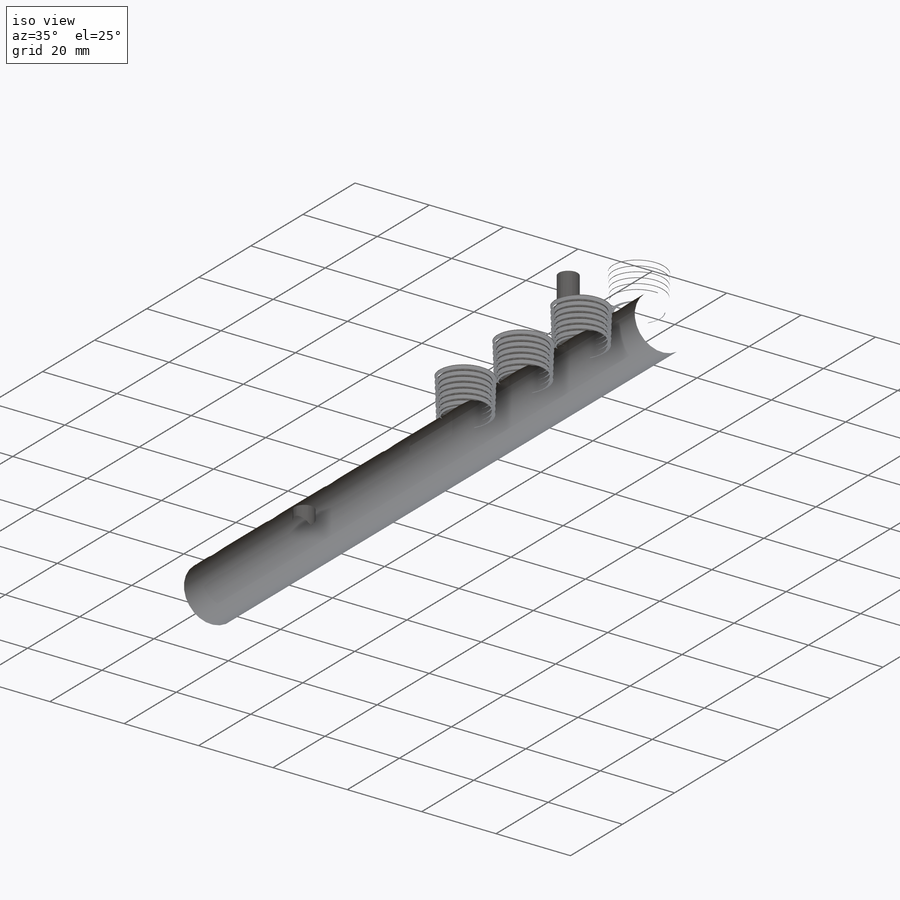
[diagram: iso view]
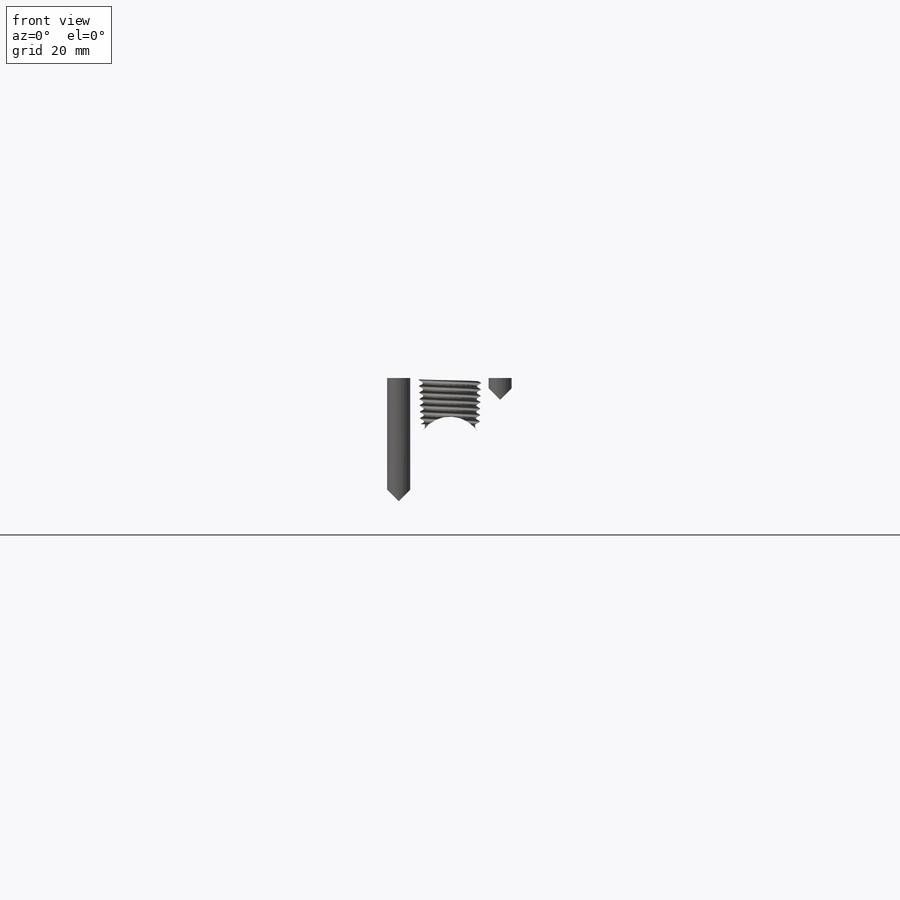
[diagram: front view]
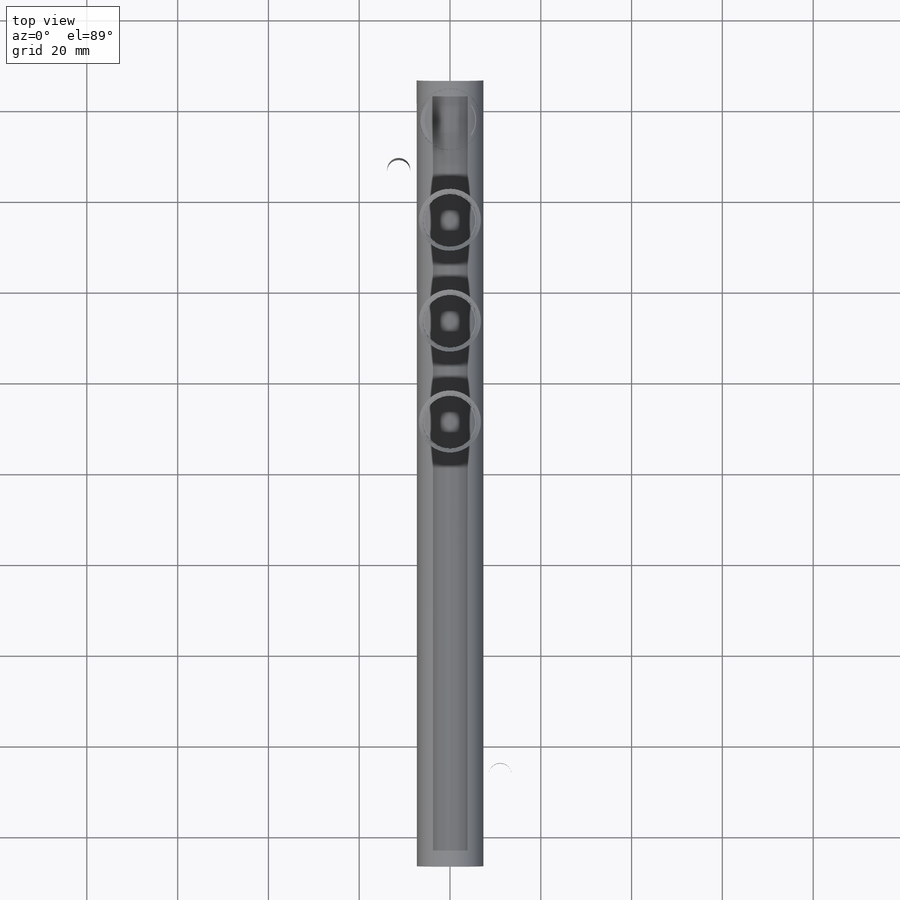
[diagram: top view]
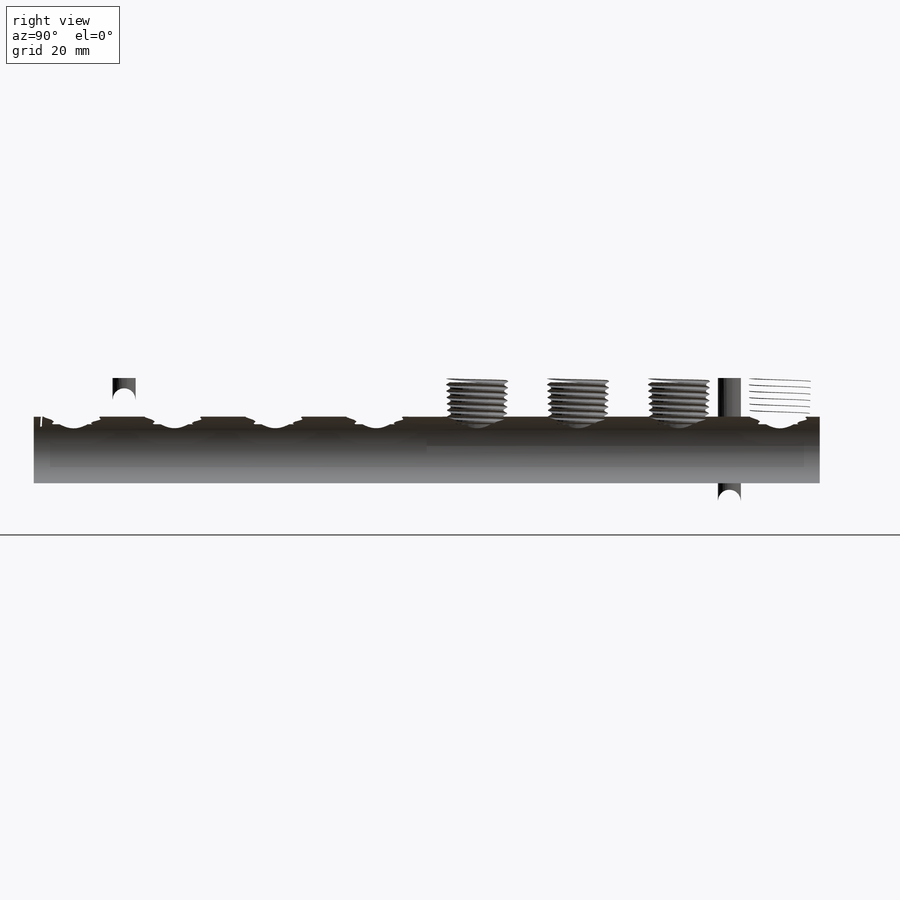
[diagram: right view]
SOLIDWORKS PART (.sldprt)
format: sldprt  version: not decoded by parser v0  size: 3,798,016 bytes
history: native  units: mm
features: sketch x17, cut_extrude x6, cut_revolve x2, helix x2, sweep x2, pattern_linear x2, pattern_circular x2, material x1, extrude x1 (+15 scaffold rows collapsed)
feature tree (50):
  scaffold x15  (default folders/planes/origin — collapsed)
  material  "Material <not specified>"
  sketch  "Sketch1"  dims[D1=31.75mm C=31.75mm]
  extrude  "Boss-Extrude1"  Depth=193.675mm H=193.675mm
  sketch  "Sketch2"  dims[c1.D=22.225mm c1.D1=~4.418571mm c2.D1=59.0deg c2.Tap Size A=11.1125mm c2.D2=~22.233752mm c2.D3=90.0deg c3.D2=~22.320409mm c3.D3=90.0deg c3.D=19.05mm c3.D4=90.0deg]
  cut_revolve  "Cut-Revolve1"  Angle=360deg
  sketch  "Sketch3"  dims[Pipe OD A=13.716mm]
  cut_extrude  "Cut-Extrude1"  Depth=10.20572mm L2 A=10.20572mm
  sketch  "Sketch4"  dims[D1=0.0mm]
  helix  "Helix/Spiral1"  Pitch=12.632831mm Height=12.632831mm Pitch A=1.411111mm
  sketch  "SketchX"
  sketch  "Sketch5"  dims[D1=~1.411111mm D2=~0.176389mm]
  sweep  "Sweep1"
  sketch  "Sketch6"
  cut_extrude  "Cut-Extrude2"  [1 undecoded]
  pattern_linear  "LPattern1"  Count1=8 Count2=1 Spacing1=22.225mm Spacing2=3.175mm #=8 E=22.225mm
  sketch  "Sketch7"  dims[c1.Tap Size B=~14.684375mm c1.D2=~8.606537mm c2.D2=59.0deg]
  cut_revolve  "Cut-Revolve2"  Angle=360deg
  sketch  "Sketch16"  dims[D1=1.778mm Ex 3 L=~10.261243mm]
  sketch  "Sketch8"  dims[Pipe OD B=17.145mm]
  cut_extrude  "Cut-Extrude3"  Depth=10.261243mm L=10.261243mm
  sketch  "Sketch9"  dims[D1=0.0mm]
  helix  "Helix/Spiral2"  Pitch=12.688354mm Height=12.688354mm Pitch B=1.411111mm
  sketch  "Sketch10"  dims[D1=~1.411111mm D2=~0.176389mm]
  sketch  "Sketch11"
  sketch  "SketchZ"  dims[D1=0.0mm]
  pattern_linear  "Axis2"  [2 undecoded]
  sweep  "Sweep2"
  sketch  "Sketch15"  dims[c1.D1=~0.203319mm c2.D1=~95.652691deg c3.D1=0.0254mm]
  cut_extrude  "Cut-Extrude7"  [1 undecoded]
  sketch  "Sketch13"  dims[D1=~0.396875mm]
  cut_extrude  "Cut-Extrude6"  Depth=5.08mm
  pattern_circular  "CirPattern2"  Count=2 Angle=360deg
  sketch  "Sketch12"  dims[c1.Mounting Hole Size=5.08mm c1.M=15.875mm c1.F=133.35mm c1.J=22.352mm c1.R=4.826mm c1.D1=~16.520255mm c1.D2=60.325mm c1.D3=82.55mm c2.D2=90.0deg c3.D2=85.09mm c3.M=85.09mm c3.D1=~85.624806mm c4.D2=~31.013757mm c4.D3=~3.960813mm c5.D2=38.1mm c5.M=38.1mm c5.D1=~38.373339mm c6.D2=90.0deg c6.D1=~38.373339mm c7.D2=40.64mm c7.D3=38.1mm c8.D2=40.64mm c8.D3=40.64mm c8.M=38.1mm c9.M=15.875mm c9.D1=~16.520255mm c9.D2=13.335mm c10.M=80.01mm c10.D1=~80.140522mm c10.D2=4.572mm c10.D3=~23.446414mm c11.D2=4.572mm c11.D3=27.178mm c12.D2=~24.934082mm c12.D3=~18.802862mm c12.M=~35.833339mm c12.D1=~35.833339mm c13.D2=~35.54047mm c13.D3=~35.54047mm c13.M=30.1625mm]
  cut_extrude  "Cut-Extrude5"  [1 undecoded]
  pattern_circular  "CirPattern3"  Count=2 Angle=90deg
decode coverage: 25 of 34 modeling features carry decoded parameters
note: ~ marks probable driven/reference dimensions
note: 5 parameter values undecoded
summary: no parameter record found for 3 features
note: suppression state not decoded; provenance and decode notes live in map.json
